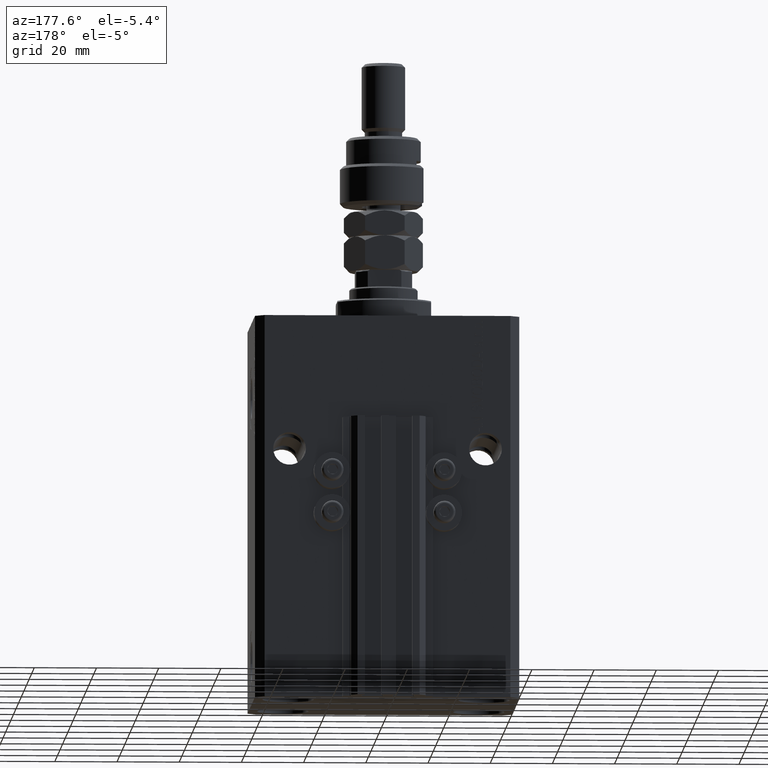
[diagram: clean part render]
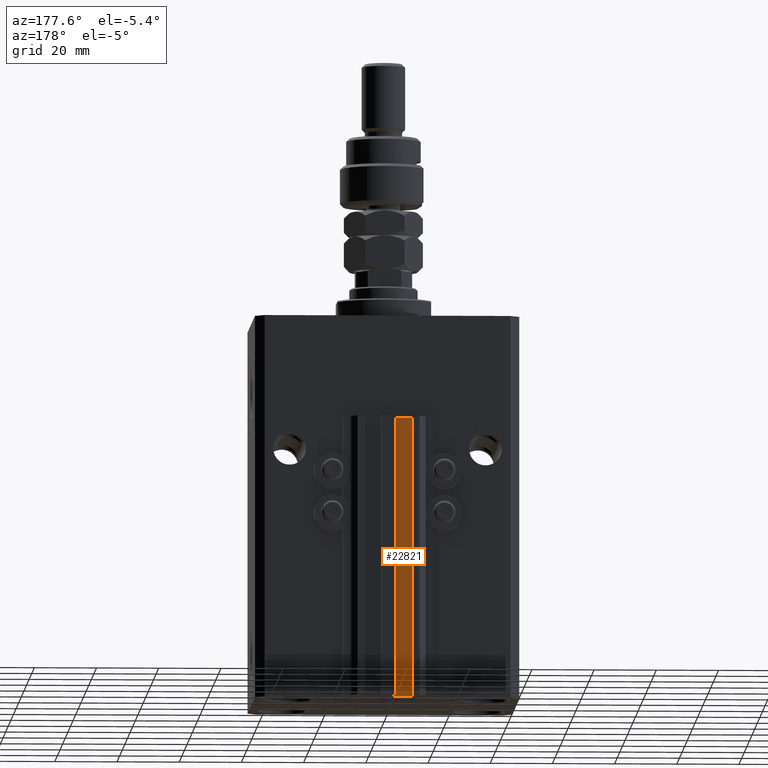
[diagram: same view with one face highlighted and labeled with its STEP entity id]
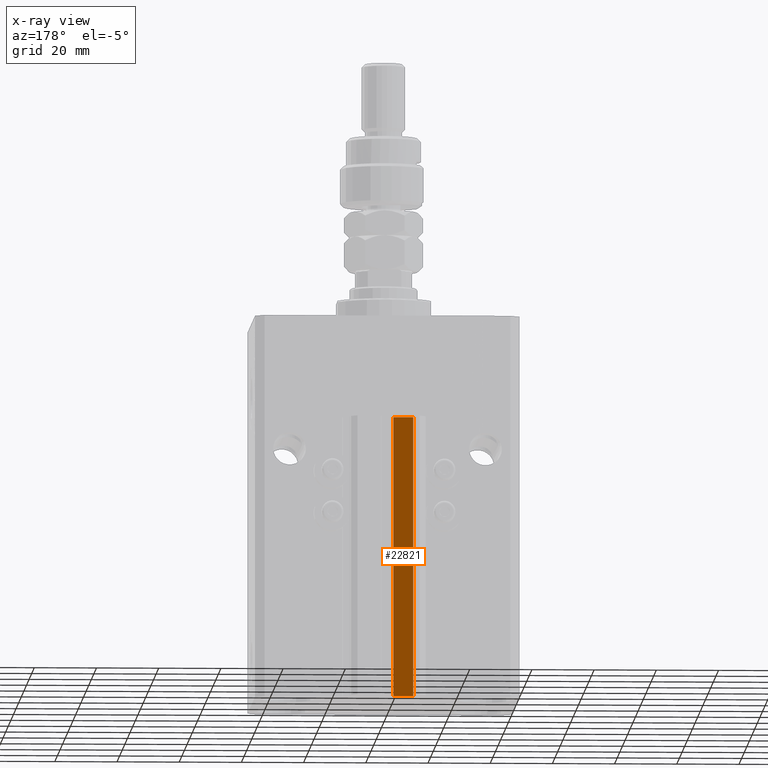
[diagram: x-ray of the same camera — body ghosted, the highlighted face saturated]
A machine part, auxiliary view. The second image highlights one B-rep face of the part: STEP entity #22821.
The next image is the same camera in x-ray: the body ghosted, the highlighted face saturated — about 0% of this face is hidden behind the body in this view.
In plain terms, the highlighted planar face has unit normal (0, 1, 0).
Its self-contained STEP definition (entity closure, byte-faithful):
#2510 = CARTESIAN_POINT ( 'NONE',  ( -1.800000000000000933, 33.50000000000000000, -33.00000000000000000 ) ) ;
#2646 = CARTESIAN_POINT ( 'NONE',  ( -8.199999999999997513, 33.50000000000000000, -123.0000000000000000 ) ) ;
#4685 = DIRECTION ( 'NONE',  ( 0.000000000000000000, 1.000000000000000000, -0.000000000000000000 ) ) ;
#5844 = EDGE_CURVE ( 'NONE', #9748, #40993, #34084, .T. ) ;
#6103 = DIRECTION ( 'NONE',  ( -1.000000000000000000, 0.000000000000000000, 0.000000000000000000 ) ) ;
#7909 = CARTESIAN_POINT ( 'NONE',  ( -8.199999999999997513, 33.50000000000000000, -123.0000000000000000 ) ) ;
#8419 = EDGE_CURVE ( 'NONE', #40993, #12047, #18777, .T. ) ;
#9748 = VERTEX_POINT ( 'NONE', #39680 ) ;
#10396 = CARTESIAN_POINT ( 'NONE',  ( -1.800000000000000933, 33.50000000000000000, -123.0000000000000000 ) ) ;
#11727 = AXIS2_PLACEMENT_3D ( 'NONE', #39968, #4685, #23764 ) ;
#12047 = VERTEX_POINT ( 'NONE', #47825 ) ;
#12532 = EDGE_LOOP ( 'NONE', ( #44151, #37964, #31024, #50791 ) ) ;
#13826 = LINE ( 'NONE', #14086, #38116 ) ;
#14086 = CARTESIAN_POINT ( 'NONE',  ( -1.800000000000000933, 33.50000000000000000, -123.0000000000000000 ) ) ;
#16276 = VECTOR ( 'NONE', #50449, 1000.000000000000000 ) ;
#18777 = LINE ( 'NONE', #23399, #16276 ) ;
#19389 = FACE_OUTER_BOUND ( 'NONE', #12532, .T. ) ;
#21980 = LINE ( 'NONE', #2646, #40516 ) ;
#22821 = ADVANCED_FACE ( 'NONE', ( #19389 ), #43342, .T. ) ;
#23399 = CARTESIAN_POINT ( 'NONE',  ( -1.800000000000000933, 33.50000000000000000, -33.00000000000000000 ) ) ;
#23764 = DIRECTION ( 'NONE',  ( 0.000000000000000000, 0.000000000000000000, 1.000000000000000000 ) ) ;
#26115 = DIRECTION ( 'NONE',  ( 0.000000000000000000, 0.000000000000000000, 1.000000000000000000 ) ) ;
#31024 = ORIENTED_EDGE ( 'NONE', *, *, #37999, .T. ) ;
#34084 = LINE ( 'NONE', #10396, #40015 ) ;
#35907 = EDGE_CURVE ( 'NONE', #41176, #12047, #21980, .T. ) ;
#37674 = DIRECTION ( 'NONE',  ( 0.000000000000000000, 0.000000000000000000, 1.000000000000000000 ) ) ;
#37964 = ORIENTED_EDGE ( 'NONE', *, *, #5844, .F. ) ;
#37999 = EDGE_CURVE ( 'NONE', #9748, #41176, #13826, .T. ) ;
#38116 = VECTOR ( 'NONE', #6103, 1000.000000000000000 ) ;
#39680 = CARTESIAN_POINT ( 'NONE',  ( -1.800000000000000933, 33.50000000000000000, -123.0000000000000000 ) ) ;
#39968 = CARTESIAN_POINT ( 'NONE',  ( -1.800000000000000933, 33.50000000000000000, -123.0000000000000000 ) ) ;
#40015 = VECTOR ( 'NONE', #26115, 1000.000000000000000 ) ;
#40516 = VECTOR ( 'NONE', #37674, 1000.000000000000000 ) ;
#40993 = VERTEX_POINT ( 'NONE', #2510 ) ;
#41176 = VERTEX_POINT ( 'NONE', #7909 ) ;
#43342 = PLANE ( 'NONE',  #11727 ) ;
#44151 = ORIENTED_EDGE ( 'NONE', *, *, #8419, .F. ) ;
#47825 = CARTESIAN_POINT ( 'NONE',  ( -8.199999999999997513, 33.50000000000000000, -33.00000000000000000 ) ) ;
#50449 = DIRECTION ( 'NONE',  ( -1.000000000000000000, 0.000000000000000000, 0.000000000000000000 ) ) ;
#50791 = ORIENTED_EDGE ( 'NONE', *, *, #35907, .T. ) ;